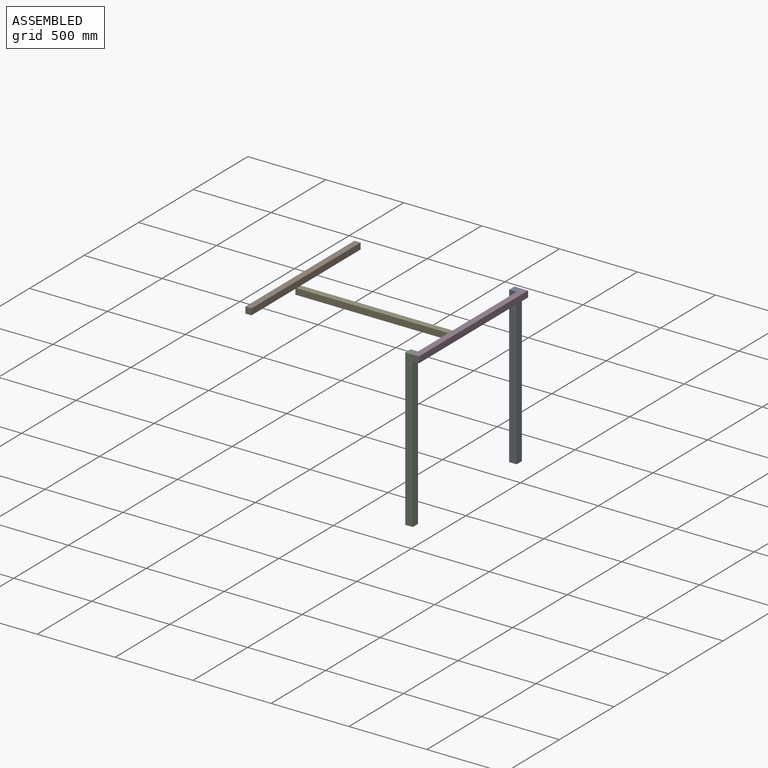
[diagram: assembled view]
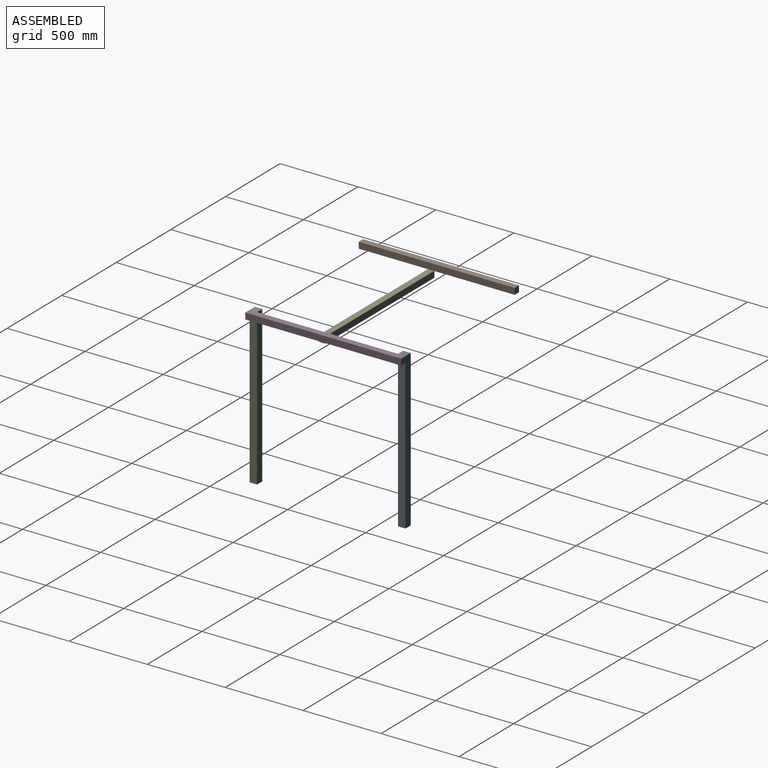
[diagram: assembled view, second angle]
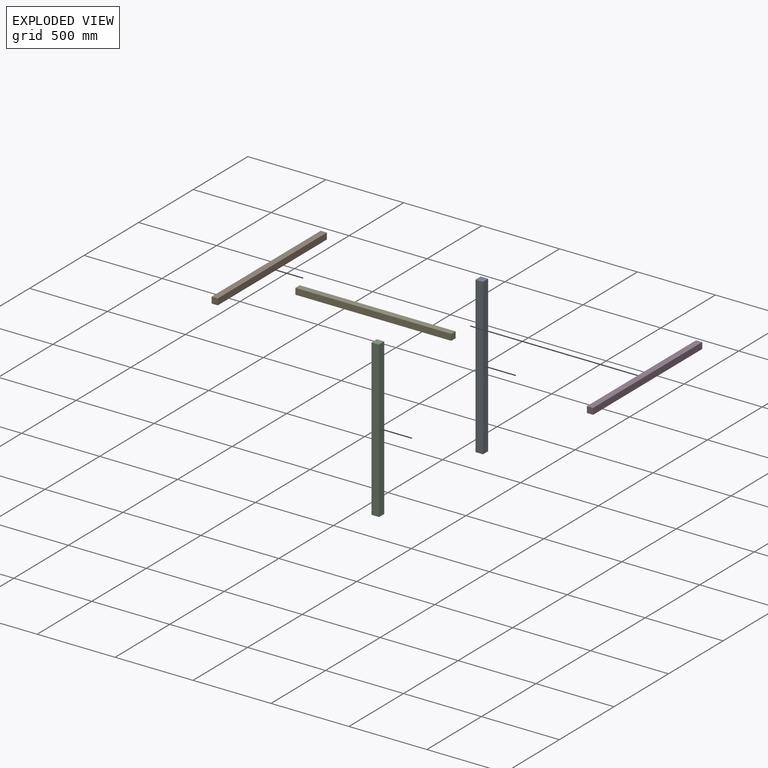
[diagram: exploded view]
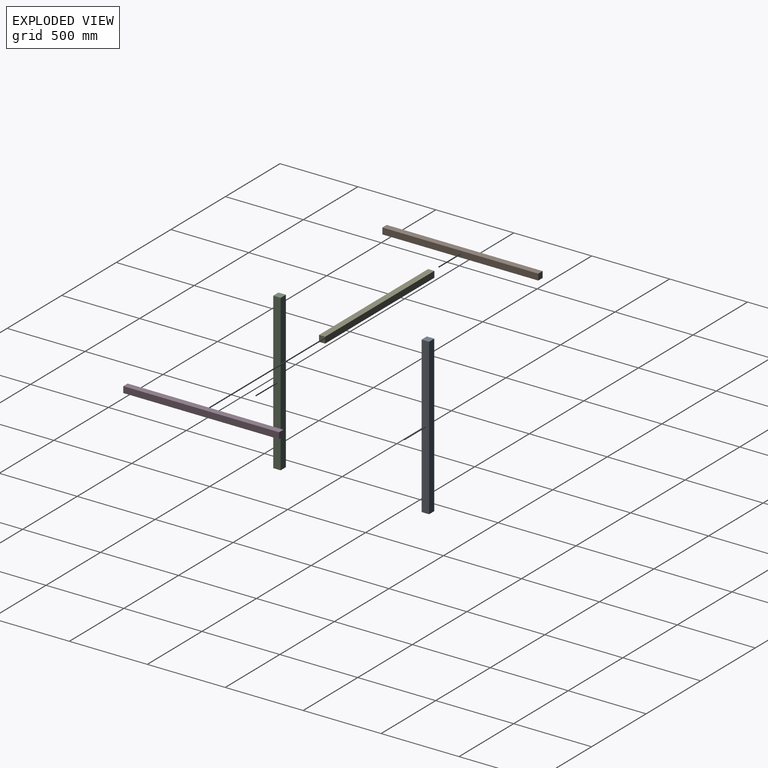
[diagram: exploded view, second angle]
ASSEMBLY  parts=5 mates=2
PART A: 6 faces, bbox 1000x47.9x48 mm
  f0: plane 48x47.85mm, normal (-1,0,0), area 2296.8mm2, adj f1,f3,f4,f5
  f1: plane 1000x48mm, normal (0,-1,0), area 48000mm2, adj f0,f2,f4,f5
  f2: plane 48x47.85mm, normal (1,0,0), area 2296.8mm2, adj f1,f3,f4,f5
  f3: plane 1000x48mm, normal (0,1,0), area 48000mm2, adj f0,f2,f4,f5
  f4: plane 1000x47.85mm, normal (0,0,1), area 47850.2mm2, adj f0,f1,f2,f3
  f5: plane 1000x47.85mm, normal (0,0,-1), area 47850.2mm2, adj f0,f1,f2,f3
PART B: 6 faces, bbox 1000x39.6x40 mm
  f0: plane 1000x40mm, normal (0,1,0), area 40000mm2, adj f1,f3,f4,f5
  f1: plane 40x39.64mm, normal (-1,0,0), area 1585.7mm2, adj f0,f2,f4,f5
  f2: plane 1000x40mm, normal (0,-1,0), area 40000mm2, adj f1,f3,f4,f5
  f3: plane 40x39.64mm, normal (1,0,0), area 1585.7mm2, adj f0,f2,f4,f5
  f4: plane 1000x39.64mm, normal (0,0,1), area 39642.9mm2, adj f0,f1,f2,f3
  f5: plane 1000x39.64mm, normal (0,0,-1), area 39642.9mm2, adj f0,f1,f2,f3
PART C: same geometry as A
PART D: same geometry as B
PART E: same geometry as B
PLACE A rot(axis=(0,1,0),90deg) t=(837.82,1128.21,70.51)mm
PLACE B rot(axis=(0,0,1),90deg) t=(-150.21,202.27,30.51)mm
PLACE C rot(axis=(0,1,0),90deg) t=(837.82,176.06,70.51)mm
PLACE D rot(axis=(0,0,1),90deg) t=(912.7,218.29,30.51)mm fixed
PLACE E t=(-115.37,603.77,-20)mm
MATE fastened A.f4 <-> D.f0  axis (1,0,0) through (885.82,1176.06,70.51)mm
MATE fastened C.f4 <-> D.f0  axis (1,0,0) through (885.82,176.06,70.51)mm
